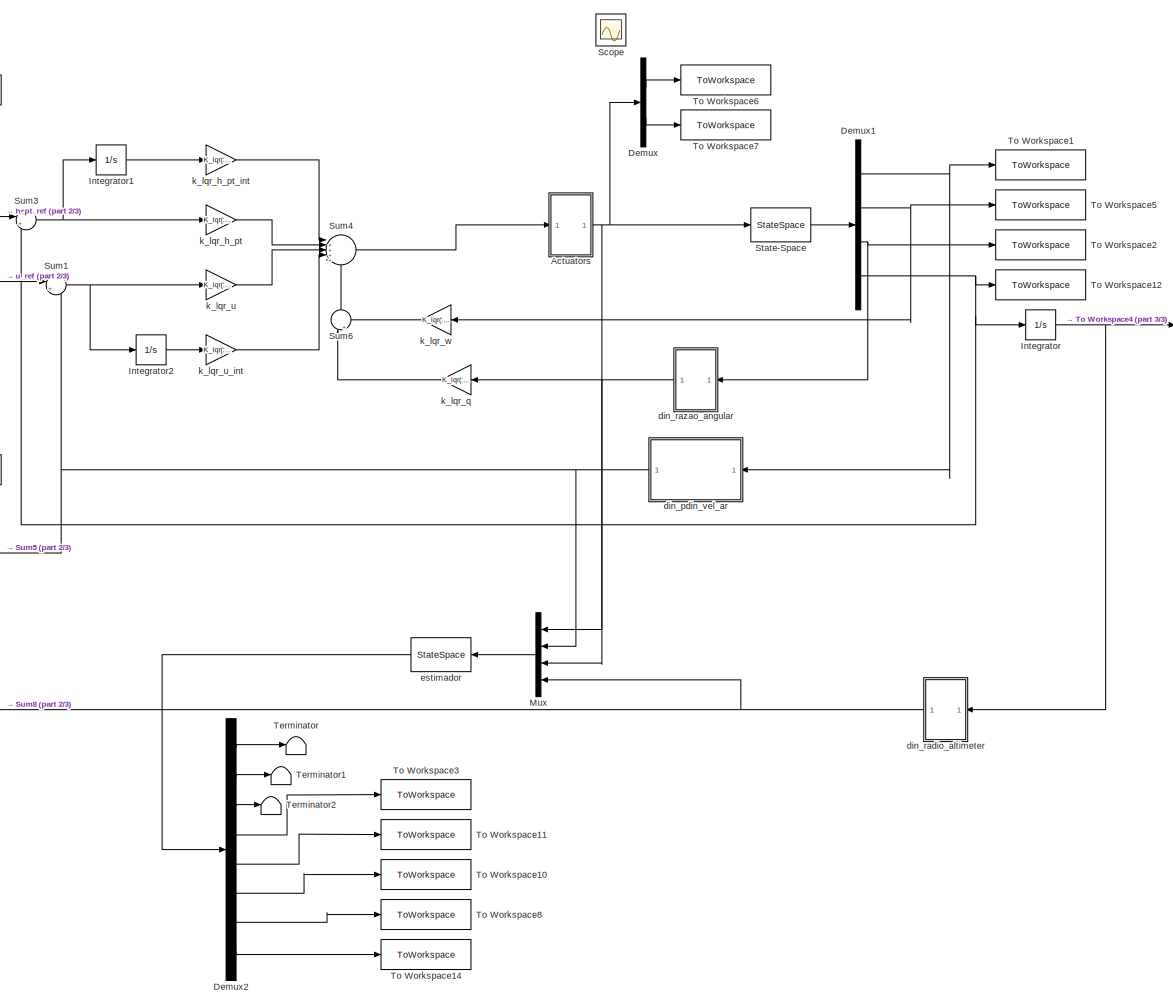
[diagram: root canvas - part 1/3, center side, full height]
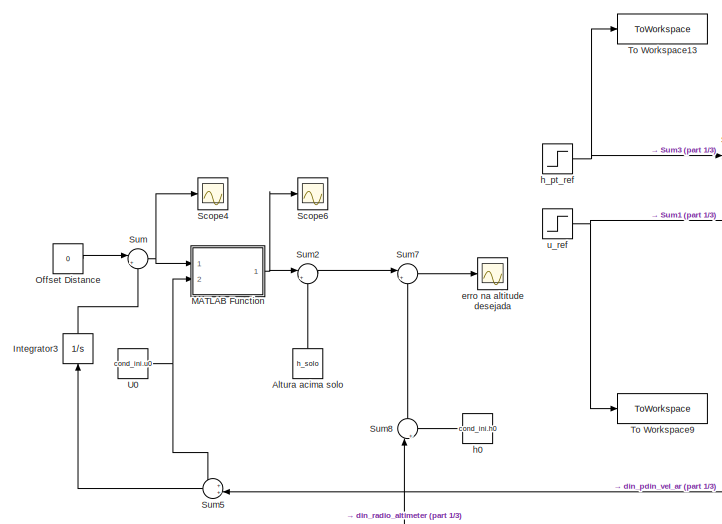
[diagram: root canvas - part 2/3, middle left region]
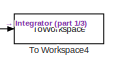
[diagram: root canvas - part 3/3, middle right region]
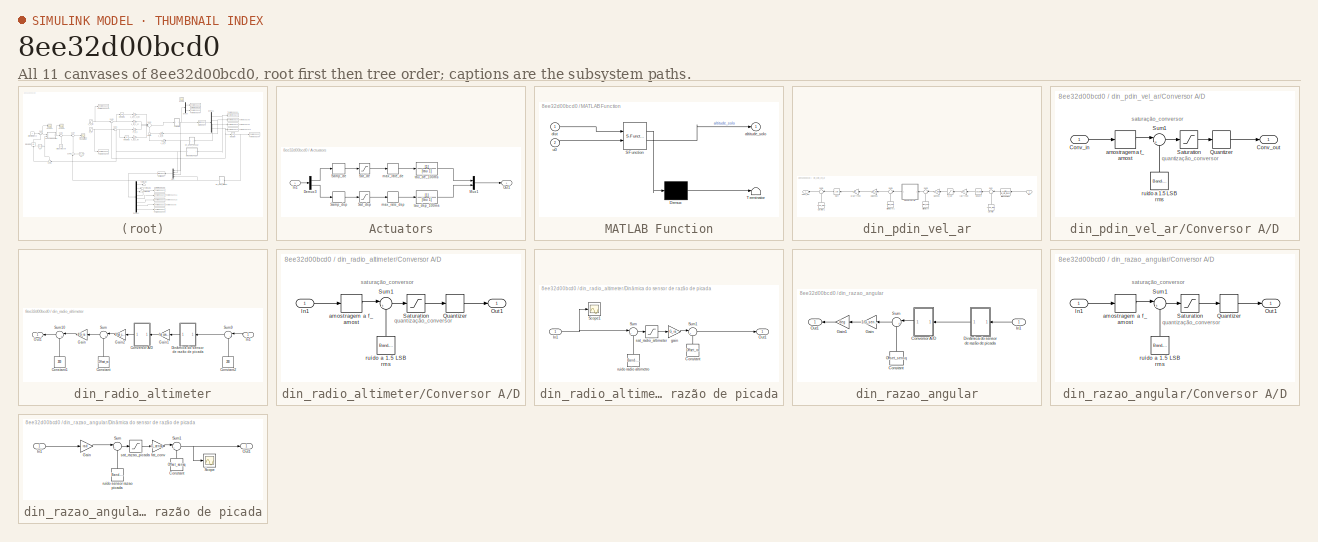
[diagram: thumbnail index - all 11 canvases of the model, root first then tree order]
MODEL slx_8ee32d00bcd0
KIND model
CONFIG AbsTol = auto
CONFIG EnableMultiTasking = off
CONFIG FixedStep = auto
CONFIG MaxStep = auto
CONFIG MinStep = auto
CONFIG RelTol = 1e-3
CONFIG SampleTimeConstraint = Unconstrained
CONFIG SolverName = VariableStepAuto
CONFIG StartTime = 0.0
CONFIG StopTime = 100
BLOCK [SubSystem] Actuators
  Ports = [1, 1]
  RequestExecContextInheritance = off
BLOCK [RateLimiter] Actuators/ max_rate_de
  FallingSlewLimit = -vel_max_at*deg
  RisingSlewLimit = vel_max_at*deg
  SampleTimeMode = inherited
BLOCK [RateLimiter] Actuators/ max_rate_dsp
  FallingSlewLimit = -vel_max_at*deg
  RisingSlewLimit = vel_max_at*deg
  SampleTimeMode = inherited
BLOCK [Demux] Actuators/Demux3
  Outputs = 2
  Ports = [1, 2]
BLOCK [Inport] Actuators/In1
BLOCK [Mux] Actuators/Mux1
  DisplayOption = bar
  Inputs = 2
  Ports = [2, 1]
BLOCK [Outport] Actuators/Out1
BLOCK [ZeroOrderHold] Actuators/Samp_de
  SampleTime = 1/f_amost
BLOCK [ZeroOrderHold] Actuators/Samp_dsp
  SampleTime = 1/f_amost
BLOCK [Saturate] Actuators/Sat_de
  LowerLimit = max_deflec.demin
  UpperLimit = max_deflec.demax
BLOCK [Saturate] Actuators/Sat_dsp
  LowerLimit = 0
  UpperLimit = max_deflec.spmax
BLOCK [TransferFcn] Actuators/tau_de_100ms
  Denominator = [tau 1]
BLOCK [TransferFcn] Actuators/tau_dsp_100ms
  Denominator = [tau 1]
BLOCK [Constant] Altura acima solo
  NameLocation = right
  Value = h_solo
BLOCK [Demux] Demux
  Outputs = 2
  Ports = [1, 2]
BLOCK [Demux] Demux1
  Ports = [1, 4]
BLOCK [Demux] Demux2
  Outputs = 8
  Ports = [1, 8]
BLOCK [Integrator] Integrator
  Ports = [1, 1]
BLOCK [Integrator] Integrator1
  Ports = [1, 1]
BLOCK [Integrator] Integrator2
  Ports = [1, 1]
BLOCK [Integrator] Integrator3
  NameLocation = right
  Ports = [1, 1]
BLOCK [SubSystem] MATLAB Function
  ErrorFcn = Stateflow.Translate.translate
  PermitHierarchicalResolution = ExplicitOnly
  Ports = [2, 1]
  RequestExecContextInheritance = off
  SFBlockType = MATLAB Function
  TreatAsAtomicUnit = on
BLOCK [Demux] MATLAB Function/ Demux 
  Outputs = 1
  Ports = [1, 1]
BLOCK [S-Function] MATLAB Function/ SFunction 
  EnableBusSupport = on
  FunctionName = sf_sfun
  PortCounts = [2 2]
  Ports = [2, 2]
  SFcnIsStateOwnerBlock = off
  SFunctionDeploymentMode = off
  Tag = Stateflow S-Function 2
BLOCK [Terminator] MATLAB Function/ Terminator 
BLOCK [Outport] MATLAB Function/altitude_solo
BLOCK [Inport] MATLAB Function/dist
BLOCK [Inport] MATLAB Function/u0
  Port = 2
BLOCK [Mux] Mux
  DisplayOption = bar
  NameLocation = top
  Ports = [4, 1]
BLOCK [Constant] Offset Distance
  Value = 0
BLOCK [Scope] Scope
  Floating = off
  IOType = viewer
  NumInputPorts = 1
  Ports = []
  ScopeSpecificationString = Simulink.scopes.TimeScopeBlockCfg('CurrentConfiguration', extmgr.ConfigurationSet(extmgr.Configuration('Core','General UI',true),extmgr.Configuration('Core','Source UI',true),extmgr.Configuration('Sources','WiredSimulink',true),extmgr.Configuration('Visuals','Time Domain',true,'SerializedDisplays',{struct('MinYLimReal','-0.52541','MaxYLimReal','2.48927','YLabelReal','','MinYLimMag','0.00000','MaxY...<+1359ch>
BLOCK [Scope] Scope4
  Floating = off
  NumInputPorts = 1
  Ports = [1]
  ScopeSpecificationString = Simulink.scopes.TimeScopeBlockCfg('CurrentConfiguration', extmgr.ConfigurationSet(extmgr.Configuration('Core','General UI',true),extmgr.Configuration('Core','Source UI',true),extmgr.Configuration('Sources','WiredSimulink',true,'DataLoggingVariableName','ScopeData2'),extmgr.Configuration('Visuals','Time Domain',true,'SerializedDisplays',{struct('MinYLimReal','-437.03217','MaxYLimReal','3933.28956',...<+1380ch>
BLOCK [Scope] Scope6
  Floating = off
  NumInputPorts = 1
  Ports = [1]
  ScopeSpecificationString = Simulink.scopes.TimeScopeBlockCfg('CurrentConfiguration', extmgr.ConfigurationSet(extmgr.Configuration('Core','General UI',true),extmgr.Configuration('Core','Source UI',true),extmgr.Configuration('Sources','WiredSimulink',true,'DataLoggingVariableName','ScopeData4'),extmgr.Configuration('Visuals','Time Domain',true,'SerializedDisplays',{struct('MinYLimReal','-21.25299','MaxYLimReal','191.27687','Y...<+1417ch>
BLOCK [StateSpace] State-Space
  A = a_h_pt
  B = b_h_pt
  C = c_h_pt
  D = d_h_pt
  InitialCondition = x0
  Ports = [1, 1]
BLOCK [Sum] Sum
  Inputs = |++
  Ports = [2, 1]
BLOCK [Sum] Sum1
  Inputs = |+-
  Ports = [2, 1]
BLOCK [Sum] Sum2
  Inputs = |++
  Ports = [2, 1]
BLOCK [Sum] Sum3
  Inputs = |+-
  Ports = [2, 1]
BLOCK [Sum] Sum4
  Inputs = |++++-
  Ports = [5, 1]
BLOCK [Sum] Sum5
  Inputs = ++|
  NameLocation = top
  Ports = [2, 1]
BLOCK [Sum] Sum6
  Inputs = |++
  NameLocation = right
  Ports = [2, 1]
BLOCK [Sum] Sum7
  Inputs = |+-
  Ports = [2, 1]
BLOCK [Sum] Sum8
  Inputs = |++
  NameLocation = right
  Ports = [2, 1]
BLOCK [Terminator] Terminator
BLOCK [Terminator] Terminator1
BLOCK [Terminator] Terminator2
BLOCK [ToWorkspace] To Workspace1
  FixptAsFi = on
  MaxDataPoints = inf
  Ports = [1]
  SampleTime = -1
  VariableName = u
BLOCK [ToWorkspace] To Workspace10
  FixptAsFi = on
  MaxDataPoints = inf
  Ports = [1]
  SampleTime = -1
  VariableName = q_e
BLOCK [ToWorkspace] To Workspace11
  FixptAsFi = on
  MaxDataPoints = inf
  Ports = [1]
  SampleTime = -1
  VariableName = w_e
BLOCK [ToWorkspace] To Workspace12
  FixptAsFi = on
  MaxDataPoints = inf
  Ports = [1]
  SampleTime = -1
  VariableName = h_pt
BLOCK [ToWorkspace] To Workspace13
  FixptAsFi = on
  MaxDataPoints = inf
  Ports = [1]
  SampleTime = -1
  VariableName = h_pt_ref
BLOCK [ToWorkspace] To Workspace14
  FixptAsFi = on
  MaxDataPoints = inf
  Ports = [1]
  SampleTime = -1
  VariableName = h_e
BLOCK [ToWorkspace] To Workspace2
  FixptAsFi = on
  MaxDataPoints = inf
  Ports = [1]
  SampleTime = -1
  VariableName = q
BLOCK [ToWorkspace] To Workspace3
  FixptAsFi = on
  MaxDataPoints = inf
  Ports = [1]
  SampleTime = -1
  VariableName = u_e
BLOCK [ToWorkspace] To Workspace4
  FixptAsFi = on
  MaxDataPoints = inf
  Ports = [1]
  SampleTime = -1
  VariableName = h
BLOCK [ToWorkspace] To Workspace5
  FixptAsFi = on
  MaxDataPoints = inf
  Ports = [1]
  SampleTime = -1
  VariableName = w
BLOCK [ToWorkspace] To Workspace6
  FixptAsFi = on
  MaxDataPoints = inf
  Ports = [1]
  SampleTime = -1
  SaveFormat = Structure With Time
  VariableName = de
BLOCK [ToWorkspace] To Workspace7
  FixptAsFi = on
  MaxDataPoints = inf
  Ports = [1]
  SampleTime = -1
  SaveFormat = Structure With Time
  VariableName = dsp
BLOCK [ToWorkspace] To Workspace8
  FixptAsFi = on
  MaxDataPoints = inf
  Ports = [1]
  SampleTime = -1
  VariableName = h_pt_e
BLOCK [ToWorkspace] To Workspace9
  FixptAsFi = on
  MaxDataPoints = inf
  Ports = [1]
  SampleTime = -1
  VariableName = u_ref
BLOCK [Constant] U0
  Value = cond_ini.u0
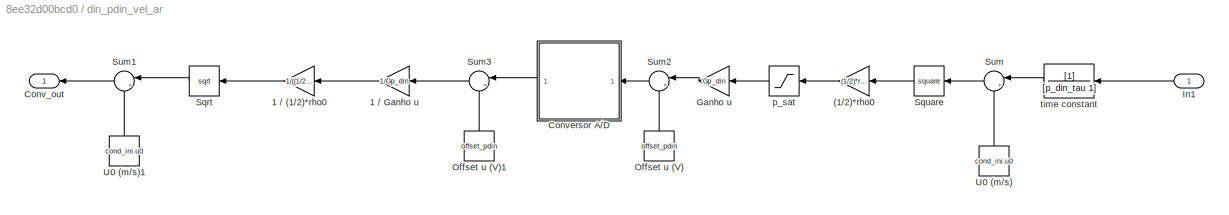
BLOCK [SubSystem] din_pdin_vel_ar
  NameLocation = top
  Ports = [1, 1]
  RequestExecContextInheritance = off
BLOCK [TransferFcn] din_pdin_vel_ar/ time constant
  Denominator = [p_din_tau 1]
  NameLocation = top
BLOCK [Gain] din_pdin_vel_ar/(1//2)*rho0
  Gain = (1/2)*rho0
  NameLocation = top
BLOCK [Gain] din_pdin_vel_ar/1 // (1//2)*rho0
  Gain = 1/((1/2)*rho0)
  NameLocation = top
BLOCK [Gain] din_pdin_vel_ar/1 // Ganho u
  Gain = 1/Gp_din
  NameLocation = top
BLOCK [Outport] din_pdin_vel_ar/Conv_out
  NameLocation = top
BLOCK [SubSystem] din_pdin_vel_ar/Conversor A//D
  NameLocation = top
  Ports = [1, 1]
  RequestExecContextInheritance = off
BLOCK [Inport] din_pdin_vel_ar/Conversor A//D/Conv_in
BLOCK [Outport] din_pdin_vel_ar/Conversor A//D/Conv_out
BLOCK [Quantizer] din_pdin_vel_ar/Conversor A//D/Quantizer
  QuantizationInterval = fat_quant
BLOCK [Saturate] din_pdin_vel_ar/Conversor A//D/Saturation
  LowerLimit = conv_min
  UpperLimit = conv_max
BLOCK [Sum] din_pdin_vel_ar/Conversor A//D/Sum1
  Inputs = |++
  Ports = [2, 1]
BLOCK [ZeroOrderHold] din_pdin_vel_ar/Conversor A//D/amostragem a f_amost
  SampleTime = 1/f_amost
BLOCK [Reference] din_pdin_vel_ar/Conversor A//D/ruído a 1.5 LSB rms  REF=simulink/Sources/Band-Limited
White Noise
  NameLocation = right
  Ports = [0, 1]
  SourceBlock = simulink/Sources/Band-Limited\nWhite Noise
  SourceProductBaseCode = SL
  SourceType = Band-Limited White Noise.
BLOCK [Gain] din_pdin_vel_ar/Ganho u
  Gain = Gp_din
  NameLocation = top
BLOCK [Inport] din_pdin_vel_ar/In1
  NameLocation = top
BLOCK [Constant] din_pdin_vel_ar/Offset u (V)
  NameLocation = right
  Value = offset_pdin
BLOCK [Constant] din_pdin_vel_ar/Offset u (V)1
  NameLocation = right
  Value = offset_pdin
BLOCK [Sqrt] din_pdin_vel_ar/Sqrt
  NameLocation = top
BLOCK [Math] din_pdin_vel_ar/Square
  NameLocation = top
  Operator = square
  Ports = [1, 1]
  SignedPower = on
BLOCK [Sum] din_pdin_vel_ar/Sum
  Inputs = |++
  NameLocation = top
  Ports = [2, 1]
BLOCK [Sum] din_pdin_vel_ar/Sum1
  Inputs = |+-
  NameLocation = top
  Ports = [2, 1]
BLOCK [Sum] din_pdin_vel_ar/Sum2
  Inputs = |++
  NameLocation = top
  Ports = [2, 1]
BLOCK [Sum] din_pdin_vel_ar/Sum3
  Inputs = |+-
  NameLocation = top
  Ports = [2, 1]
BLOCK [Constant] din_pdin_vel_ar/U0 (m//s)
  NameLocation = right
  Value = cond_ini.u0
BLOCK [Constant] din_pdin_vel_ar/U0 (m//s)1
  NameLocation = right
  Value = cond_ini.u0
BLOCK [Saturate] din_pdin_vel_ar/p_sat
  LowerLimit = pdin_min
  NameLocation = top
  UpperLimit = pdin_max
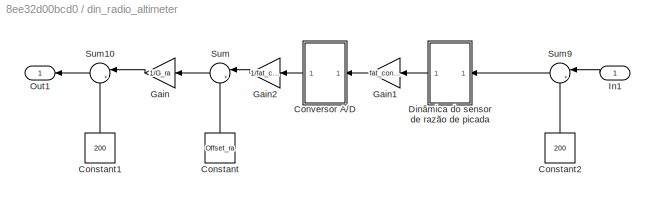
BLOCK [SubSystem] din_radio_altimeter
  Ports = [1, 1]
  RequestExecContextInheritance = off
BLOCK [Constant] din_radio_altimeter/Constant
  NameLocation = right
  Value = Offset_ra
BLOCK [Constant] din_radio_altimeter/Constant1
  NameLocation = right
  Value = 200
BLOCK [Constant] din_radio_altimeter/Constant2
  NameLocation = right
  Value = 200
BLOCK [SubSystem] din_radio_altimeter/Conversor A//D
  NameLocation = top
  Ports = [1, 1]
  RequestExecContextInheritance = off
BLOCK [Inport] din_radio_altimeter/Conversor A//D/In1
BLOCK [Outport] din_radio_altimeter/Conversor A//D/Out1
BLOCK [Quantizer] din_radio_altimeter/Conversor A//D/Quantizer
  QuantizationInterval = fat_quant
BLOCK [Saturate] din_radio_altimeter/Conversor A//D/Saturation
  LowerLimit = conv_min
  UpperLimit = conv_max
BLOCK [Sum] din_radio_altimeter/Conversor A//D/Sum1
  Inputs = |++
  Ports = [2, 1]
BLOCK [ZeroOrderHold] din_radio_altimeter/Conversor A//D/amostragem a f_amost
  SampleTime = 1/f_amost
BLOCK [Reference] din_radio_altimeter/Conversor A//D/ruído a 1.5 LSB rms  REF=simulink/Sources/Band-Limited
White Noise
  NameLocation = right
  Ports = [0, 1]
  SourceBlock = simulink/Sources/Band-Limited\nWhite Noise
  SourceProductBaseCode = SL
  SourceType = Band-Limited White Noise.
BLOCK [SubSystem] din_radio_altimeter/Dinâmica do sensor de razão de picada
  Ports = [1, 1]
  RequestExecContextInheritance = off
BLOCK [Constant] din_radio_altimeter/Dinâmica do sensor de razão de picada/Constant
  NameLocation = right
  Value = Offset_ra
BLOCK [Inport] din_radio_altimeter/Dinâmica do sensor de razão de picada/In1
BLOCK [Outport] din_radio_altimeter/Dinâmica do sensor de razão de picada/Out1
BLOCK [Scope] din_radio_altimeter/Dinâmica do sensor de razão de picada/Scope1
  Floating = off
  NumInputPorts = 1
  Ports = [1]
  ScopeSpecificationString = Simulink.scopes.TimeScopeBlockCfg('CurrentConfiguration', extmgr.ConfigurationSet(extmgr.Configuration('Core','General UI',true),extmgr.Configuration('Core','Source UI',true),extmgr.Configuration('Sources','WiredSimulink',true,'DataLoggingVariableName','ScopeData6'),extmgr.Configuration('Visuals','Time Domain',true,'SerializedDisplays',{struct('MinYLimReal','112.81721','MaxYLimReal','209.79696','Y...<+1376ch>
BLOCK [Sum] din_radio_altimeter/Dinâmica do sensor de razão de picada/Sum
  Inputs = |++
  Ports = [2, 1]
BLOCK [Sum] din_radio_altimeter/Dinâmica do sensor de razão de picada/Sum1
  Inputs = |++
  Ports = [2, 1]
BLOCK [Gain] din_radio_altimeter/Dinâmica do sensor de razão de picada/gain
  Gain = G_ra
BLOCK [Reference] din_radio_altimeter/Dinâmica do sensor de razão de picada/ruido radio altimetro  REF=simulink/Sources/Band-Limited
White Noise
  NameLocation = right
  Ports = [0, 1]
  SourceBlock = simulink/Sources/Band-Limited\nWhite Noise
  SourceProductBaseCode = SL
  SourceType = Band-Limited White Noise.
BLOCK [Saturate] din_radio_altimeter/Dinâmica do sensor de razão de picada/sat_radio_altimeter
  LowerLimit = h_ra_min
  NameLocation = top
  UpperLimit = h_ra_max
BLOCK [Gain] din_radio_altimeter/Gain
  Gain = 1/G_ra
  NameLocation = top
BLOCK [Gain] din_radio_altimeter/Gain1
  Gain = fat_conv_ra
  NameLocation = top
BLOCK [Gain] din_radio_altimeter/Gain2
  Gain = 1/fat_conv_ra
  NameLocation = top
BLOCK [Inport] din_radio_altimeter/In1
  NameLocation = top
BLOCK [Outport] din_radio_altimeter/Out1
BLOCK [Sum] din_radio_altimeter/Sum
  Inputs = |+-
  NameLocation = top
  Ports = [2, 1]
BLOCK [Sum] din_radio_altimeter/Sum10
  Inputs = |+-
  NameLocation = top
  Ports = [2, 1]
BLOCK [Sum] din_radio_altimeter/Sum9
  Inputs = |++
  NameLocation = top
  Ports = [2, 1]
BLOCK [SubSystem] din_razao_angular
  Ports = [1, 1]
  RequestExecContextInheritance = off
BLOCK [Constant] din_razao_angular/Constant
  NameLocation = right
  Value = Offset_sensq
BLOCK [SubSystem] din_razao_angular/Conversor A//D
  NameLocation = top
  Ports = [1, 1]
  RequestExecContextInheritance = off
BLOCK [Inport] din_razao_angular/Conversor A//D/In1
BLOCK [Outport] din_razao_angular/Conversor A//D/Out1
BLOCK [Quantizer] din_razao_angular/Conversor A//D/Quantizer
  QuantizationInterval = fat_quant
BLOCK [Saturate] din_razao_angular/Conversor A//D/Saturation
  LowerLimit = conv_min
  UpperLimit = conv_max
BLOCK [Sum] din_razao_angular/Conversor A//D/Sum1
  Inputs = |++
  Ports = [2, 1]
BLOCK [ZeroOrderHold] din_razao_angular/Conversor A//D/amostragem a f_amost
  SampleTime = 1/f_amost
BLOCK [Reference] din_razao_angular/Conversor A//D/ruído a 1.5 LSB rms  REF=simulink/Sources/Band-Limited
White Noise
  NameLocation = right
  Ports = [0, 1]
  SourceBlock = simulink/Sources/Band-Limited\nWhite Noise
  SourceProductBaseCode = SL
  SourceType = Band-Limited White Noise.
BLOCK [SubSystem] din_razao_angular/Dinâmica do sensor de razão de picada
  Ports = [1, 1]
  RequestExecContextInheritance = off
BLOCK [Constant] din_razao_angular/Dinâmica do sensor de razão de picada/Constant
  NameLocation = right
  Value = Offset_sensq
BLOCK [Gain] din_razao_angular/Dinâmica do sensor de razão de picada/Gain
  Gain = rad
  NameLocation = top
BLOCK [Inport] din_razao_angular/Dinâmica do sensor de razão de picada/In1
BLOCK [Outport] din_razao_angular/Dinâmica do sensor de razão de picada/Out1
BLOCK [Scope] din_razao_angular/Dinâmica do sensor de razão de picada/Scope
  Floating = off
  NumInputPorts = 1
  Ports = [1]
  ScopeSpecificationString = Simulink.scopes.TimeScopeBlockCfg('CurrentConfiguration', extmgr.ConfigurationSet(extmgr.Configuration('Core','General UI',true),extmgr.Configuration('Core','Source UI',true),extmgr.Configuration('Sources','WiredSimulink',true,'DataLoggingVariableName','ScopeData3'),extmgr.Configuration('Visuals','Time Domain',true),extmgr.Configuration('Tools','Plot Navigation',true),extmgr.Configuration('Tools',...<+40ch>
BLOCK [Sum] din_razao_angular/Dinâmica do sensor de razão de picada/Sum
  Inputs = |++
  Ports = [2, 1]
BLOCK [Sum] din_razao_angular/Dinâmica do sensor de razão de picada/Sum1
  Inputs = |++
  Ports = [2, 1]
BLOCK [Gain] din_razao_angular/Dinâmica do sensor de razão de picada/fat_conv
  Gain = G_sensq
BLOCK [Reference] din_razao_angular/Dinâmica do sensor de razão de picada/ruído sensor razao picada  REF=simulink/Sources/Band-Limited
White Noise
  NameLocation = right
  Ports = [0, 1]
  SourceBlock = simulink/Sources/Band-Limited\nWhite Noise
  SourceProductBaseCode = SL
  SourceType = Band-Limited White Noise.
BLOCK [Saturate] din_razao_angular/Dinâmica do sensor de razão de picada/sat_razao_picada
  LowerLimit = q_min_sensq
  NameLocation = top
  UpperLimit = q_max_sensq
BLOCK [Gain] din_razao_angular/Gain
  Gain = 1/G_sensq
  NameLocation = top
BLOCK [Gain] din_razao_angular/Gain1
  Gain = deg
  NameLocation = top
BLOCK [Inport] din_razao_angular/In1
  NameLocation = top
BLOCK [Outport] din_razao_angular/Out1
BLOCK [Sum] din_razao_angular/Sum
  Inputs = |+-
  NameLocation = top
  Ports = [2, 1]
BLOCK [Scope] erro na altitude desejada
  Floating = off
  NumInputPorts = 1
  Ports = [1]
  ScopeSpecificationString = Simulink.scopes.TimeScopeBlockCfg('CurrentConfiguration', extmgr.ConfigurationSet(extmgr.Configuration('Core','General UI',true),extmgr.Configuration('Core','Source UI',true),extmgr.Configuration('Sources','WiredSimulink',true,'DataLoggingVariableName','ScopeData1'),extmgr.Configuration('Visuals','Time Domain',true,'SerializedDisplays',{struct('MinYLimReal','-22.77155','MaxYLimReal','277.53603','Y...<+1405ch>
BLOCK [StateSpace] estimador
  A = ae
  B = be
  C = ce
  D = de
  InitialCondition = x0_e
  NameLocation = top
  Ports = [1, 1]
BLOCK [Constant] h0
  NameLocation = top
  Value = cond_ini.h0
BLOCK [Step] h_pt_ref
  After = h_pt_ref
  SampleTime = 0
  Time = 10
  VectorParams1D = off
BLOCK [Gain] k_lqr_h_pt
  Gain = K_lqr(:,4)
  Multiplication = Matrix(K*u)
BLOCK [Gain] k_lqr_h_pt_int
  Gain = K_lqr(:,6)
  Multiplication = Matrix(K*u)
BLOCK [Gain] k_lqr_q
  Gain = K_lqr(:,3)
  Multiplication = Matrix(K*u)
  NameLocation = top
BLOCK [Gain] k_lqr_u
  Gain = K_lqr(:,1)
  Multiplication = Matrix(K*u)
BLOCK [Gain] k_lqr_u_int
  Gain = K_lqr(:,5)
  Multiplication = Matrix(K*u)
BLOCK [Gain] k_lqr_w
  Gain = K_lqr(:,2)
  Multiplication = Matrix(K*u)
  NameLocation = top
BLOCK [Step] u_ref
  After = u_ref
  SampleTime = 0
  Time = 50
  VectorParams1D = off
ANNOTATION din_pdin_vel_ar/Conversor A//D: quantização_conversor
ANNOTATION din_pdin_vel_ar/Conversor A//D: saturação_conversor
ANNOTATION din_radio_altimeter/Conversor A//D: quantização_conversor
ANNOTATION din_radio_altimeter/Conversor A//D: saturação_conversor
ANNOTATION din_razao_angular/Conversor A//D: quantização_conversor
ANNOTATION din_razao_angular/Conversor A//D: saturação_conversor
LINE Actuators/ max_rate_de:1 -> Actuators/tau_de_100ms:1
LINE Actuators/ max_rate_dsp:1 -> Actuators/tau_dsp_100ms:1
LINE Actuators/Demux3:1 -> Actuators/Samp_de:1
LINE Actuators/Demux3:2 -> Actuators/Samp_dsp:1
LINE Actuators/In1:1 -> Actuators/Demux3:1
LINE Actuators/Mux1:1 -> Actuators/Out1:1
LINE Actuators/Samp_de:1 -> Actuators/Sat_de:1
LINE Actuators/Samp_dsp:1 -> Actuators/Sat_dsp:1
LINE Actuators/Sat_de:1 -> Actuators/ max_rate_de:1
LINE Actuators/Sat_dsp:1 -> Actuators/ max_rate_dsp:1
LINE Actuators/tau_de_100ms:1 -> Actuators/Mux1:1
LINE Actuators/tau_dsp_100ms:1 -> Actuators/Mux1:2
NET Actuators:1 -> Demux:1, Mux:1, State-Space:1
LINE Altura acima solo:1 -> Sum2:2
NET Demux1:1 -> To Workspace1:1, din_pdin_vel_ar:1
NET Demux1:2 -> To Workspace5:1, k_lqr_w:1
NET Demux1:3 -> To Workspace2:1, din_razao_angular:1
NET Demux1:4 -> Integrator:1, Sum3:2, To Workspace12:1
LINE Demux2:1 -> Terminator:1
LINE Demux2:2 -> Terminator1:1
LINE Demux2:3 -> Terminator2:1
LINE Demux2:4 -> To Workspace3:1
LINE Demux2:5 -> To Workspace11:1
LINE Demux2:6 -> To Workspace10:1
LINE Demux2:7 -> To Workspace8:1
LINE Demux2:8 -> To Workspace14:1
LINE Demux:1 -> To Workspace6:1
LINE Demux:2 -> To Workspace7:1
LINE Integrator1:1 -> k_lqr_h_pt_int:1
LINE Integrator2:1 -> k_lqr_u_int:1
LINE Integrator3:1 -> Sum:2
NET Integrator:1 -> To Workspace4:1, din_radio_altimeter:1
NET MATLAB Function:1 -> Scope6:1, Sum2:1
LINE Mux:1 -> estimador:1
LINE Offset Distance:1 -> Sum:1
LINE State-Space:1 -> Demux1:1
NET Sum1:1 -> Integrator2:1, k_lqr_u:1
LINE Sum2:1 -> Sum7:1
NET Sum3:1 -> Integrator1:1, k_lqr_h_pt:1
LINE Sum4:1 -> Actuators:1
LINE Sum5:1 -> Integrator3:1
LINE Sum6:1 -> Sum4:5
LINE Sum7:1 -> erro na altitude desejada:1
LINE Sum8:1 -> Sum7:2
NET Sum:1 -> MATLAB Function:1, Scope4:1
NET U0:1 -> MATLAB Function:2, Sum5:1
LINE din_pdin_vel_ar/ time constant:1 -> din_pdin_vel_ar/Sum:1
LINE din_pdin_vel_ar/(1//2)*rho0:1 -> din_pdin_vel_ar/p_sat:1
LINE din_pdin_vel_ar/1 // (1//2)*rho0:1 -> din_pdin_vel_ar/Sqrt:1
LINE din_pdin_vel_ar/1 // Ganho u:1 -> din_pdin_vel_ar/1 // (1//2)*rho0:1
LINE din_pdin_vel_ar/Conversor A//D/Conv_in:1 -> din_pdin_vel_ar/Conversor A//D/amostragem a f_amost:1
LINE din_pdin_vel_ar/Conversor A//D/Quantizer:1 -> din_pdin_vel_ar/Conversor A//D/Conv_out:1
LINE din_pdin_vel_ar/Conversor A//D/Saturation:1 -> din_pdin_vel_ar/Conversor A//D/Quantizer:1
LINE din_pdin_vel_ar/Conversor A//D/Sum1:1 -> din_pdin_vel_ar/Conversor A//D/Saturation:1
LINE din_pdin_vel_ar/Conversor A//D/amostragem a f_amost:1 -> din_pdin_vel_ar/Conversor A//D/Sum1:1
LINE din_pdin_vel_ar/Conversor A//D/ruído a 1.5 LSB rms:1 -> din_pdin_vel_ar/Conversor A//D/Sum1:2
LINE din_pdin_vel_ar/Conversor A//D:1 -> din_pdin_vel_ar/Sum3:1
LINE din_pdin_vel_ar/Ganho u:1 -> din_pdin_vel_ar/Sum2:1
LINE din_pdin_vel_ar/In1:1 -> din_pdin_vel_ar/ time constant:1
LINE din_pdin_vel_ar/Offset u (V)1:1 -> din_pdin_vel_ar/Sum3:2
LINE din_pdin_vel_ar/Offset u (V):1 -> din_pdin_vel_ar/Sum2:2
LINE din_pdin_vel_ar/Sqrt:1 -> din_pdin_vel_ar/Sum1:1
LINE din_pdin_vel_ar/Square:1 -> din_pdin_vel_ar/(1//2)*rho0:1
LINE din_pdin_vel_ar/Sum1:1 -> din_pdin_vel_ar/Conv_out:1
LINE din_pdin_vel_ar/Sum2:1 -> din_pdin_vel_ar/Conversor A//D:1
LINE din_pdin_vel_ar/Sum3:1 -> din_pdin_vel_ar/1 // Ganho u:1
LINE din_pdin_vel_ar/Sum:1 -> din_pdin_vel_ar/Square:1
LINE din_pdin_vel_ar/U0 (m//s)1:1 -> din_pdin_vel_ar/Sum1:2
LINE din_pdin_vel_ar/U0 (m//s):1 -> din_pdin_vel_ar/Sum:2
LINE din_pdin_vel_ar/p_sat:1 -> din_pdin_vel_ar/Ganho u:1
NET din_pdin_vel_ar:1 -> Mux:2, Sum1:2, Sum5:2
LINE din_radio_altimeter/Constant1:1 -> din_radio_altimeter/Sum10:2
LINE din_radio_altimeter/Constant2:1 -> din_radio_altimeter/Sum9:2
LINE din_radio_altimeter/Constant:1 -> din_radio_altimeter/Sum:2
LINE din_radio_altimeter/Conversor A//D/In1:1 -> din_radio_altimeter/Conversor A//D/amostragem a f_amost:1
LINE din_radio_altimeter/Conversor A//D/Quantizer:1 -> din_radio_altimeter/Conversor A//D/Out1:1
LINE din_radio_altimeter/Conversor A//D/Saturation:1 -> din_radio_altimeter/Conversor A//D/Quantizer:1
LINE din_radio_altimeter/Conversor A//D/Sum1:1 -> din_radio_altimeter/Conversor A//D/Saturation:1
LINE din_radio_altimeter/Conversor A//D/amostragem a f_amost:1 -> din_radio_altimeter/Conversor A//D/Sum1:1
LINE din_radio_altimeter/Conversor A//D/ruído a 1.5 LSB rms:1 -> din_radio_altimeter/Conversor A//D/Sum1:2
LINE din_radio_altimeter/Conversor A//D:1 -> din_radio_altimeter/Gain2:1
LINE din_radio_altimeter/Dinâmica do sensor de razão de picada/Constant:1 -> din_radio_altimeter/Dinâmica do sensor de razão de picada/Sum1:2
NET din_radio_altimeter/Dinâmica do sensor de razão de picada/In1:1 -> din_radio_altimeter/Dinâmica do sensor de razão de picada/Scope1:1, din_radio_altimeter/Dinâmica do sensor de razão de picada/Sum:1
LINE din_radio_altimeter/Dinâmica do sensor de razão de picada/Sum1:1 -> din_radio_altimeter/Dinâmica do sensor de razão de picada/Out1:1
LINE din_radio_altimeter/Dinâmica do sensor de razão de picada/Sum:1 -> din_radio_altimeter/Dinâmica do sensor de razão de picada/sat_radio_altimeter:1
LINE din_radio_altimeter/Dinâmica do sensor de razão de picada/gain:1 -> din_radio_altimeter/Dinâmica do sensor de razão de picada/Sum1:1
LINE din_radio_altimeter/Dinâmica do sensor de razão de picada/ruido radio altimetro:1 -> din_radio_altimeter/Dinâmica do sensor de razão de picada/Sum:2
LINE din_radio_altimeter/Dinâmica do sensor de razão de picada/sat_radio_altimeter:1 -> din_radio_altimeter/Dinâmica do sensor de razão de picada/gain:1
LINE din_radio_altimeter/Dinâmica do sensor de razão de picada:1 -> din_radio_altimeter/Gain1:1
LINE din_radio_altimeter/Gain1:1 -> din_radio_altimeter/Conversor A//D:1
LINE din_radio_altimeter/Gain2:1 -> din_radio_altimeter/Sum:1
LINE din_radio_altimeter/Gain:1 -> din_radio_altimeter/Sum10:1
LINE din_radio_altimeter/In1:1 -> din_radio_altimeter/Sum9:1
LINE din_radio_altimeter/Sum10:1 -> din_radio_altimeter/Out1:1
LINE din_radio_altimeter/Sum9:1 -> din_radio_altimeter/Dinâmica do sensor de razão de picada:1
LINE din_radio_altimeter/Sum:1 -> din_radio_altimeter/Gain:1
NET din_radio_altimeter:1 -> Mux:4, Sum8:1
LINE din_razao_angular/Constant:1 -> din_razao_angular/Sum:2
LINE din_razao_angular/Conversor A//D/In1:1 -> din_razao_angular/Conversor A//D/amostragem a f_amost:1
LINE din_razao_angular/Conversor A//D/Quantizer:1 -> din_razao_angular/Conversor A//D/Out1:1
LINE din_razao_angular/Conversor A//D/Saturation:1 -> din_razao_angular/Conversor A//D/Quantizer:1
LINE din_razao_angular/Conversor A//D/Sum1:1 -> din_razao_angular/Conversor A//D/Saturation:1
LINE din_razao_angular/Conversor A//D/amostragem a f_amost:1 -> din_razao_angular/Conversor A//D/Sum1:1
LINE din_razao_angular/Conversor A//D/ruído a 1.5 LSB rms:1 -> din_razao_angular/Conversor A//D/Sum1:2
LINE din_razao_angular/Conversor A//D:1 -> din_razao_angular/Sum:1
LINE din_razao_angular/Dinâmica do sensor de razão de picada/Constant:1 -> din_razao_angular/Dinâmica do sensor de razão de picada/Sum1:2
LINE din_razao_angular/Dinâmica do sensor de razão de picada/Gain:1 -> din_razao_angular/Dinâmica do sensor de razão de picada/Sum:1
LINE din_razao_angular/Dinâmica do sensor de razão de picada/In1:1 -> din_razao_angular/Dinâmica do sensor de razão de picada/Gain:1
NET din_razao_angular/Dinâmica do sensor de razão de picada/Sum1:1 -> din_razao_angular/Dinâmica do sensor de razão de picada/Out1:1, din_razao_angular/Dinâmica do sensor de razão de picada/Scope:1
LINE din_razao_angular/Dinâmica do sensor de razão de picada/Sum:1 -> din_razao_angular/Dinâmica do sensor de razão de picada/sat_razao_picada:1
LINE din_razao_angular/Dinâmica do sensor de razão de picada/fat_conv:1 -> din_razao_angular/Dinâmica do sensor de razão de picada/Sum1:1
LINE din_razao_angular/Dinâmica do sensor de razão de picada/ruído sensor razao picada:1 -> din_razao_angular/Dinâmica do sensor de razão de picada/Sum:2
LINE din_razao_angular/Dinâmica do sensor de razão de picada/sat_razao_picada:1 -> din_razao_angular/Dinâmica do sensor de razão de picada/fat_conv:1
LINE din_razao_angular/Dinâmica do sensor de razão de picada:1 -> din_razao_angular/Conversor A//D:1
LINE din_razao_angular/Gain1:1 -> din_razao_angular/Out1:1
LINE din_razao_angular/Gain:1 -> din_razao_angular/Gain1:1
LINE din_razao_angular/In1:1 -> din_razao_angular/Dinâmica do sensor de razão de picada:1
LINE din_razao_angular/Sum:1 -> din_razao_angular/Gain:1
NET din_razao_angular:1 -> Mux:3, k_lqr_q:1
LINE estimador:1 -> Demux2:1
LINE h0:1 -> Sum8:2
NET h_pt_ref:1 -> Sum3:1, To Workspace13:1
LINE k_lqr_h_pt:1 -> Sum4:2
LINE k_lqr_h_pt_int:1 -> Sum4:1
LINE k_lqr_q:1 -> Sum6:1
LINE k_lqr_u:1 -> Sum4:3
LINE k_lqr_u_int:1 -> Sum4:4
LINE k_lqr_w:1 -> Sum6:2
NET u_ref:1 -> Sum1:1, To Workspace9:1
note: NET lines group one-source signal fan-out (src -> all destinations, sorted); 1:1 wires keep LINE
CHART MATLAB Function states=1 transitions=1
  STATE_LABEL 'eML_blk_kernel()'
  STATE_LABEL 'SCRIPT:\nfunction altitude_solo = fcn(dist,u0)\n\naltitude_solo = 5*u0;\n\nif dist >= 0 && dist < 20*u0\n    altitude_solo = -dist/4 + 5*u0;\nelseif dist >= 20*u0 && dist < 40*u0\n    altitude_solo = 0;\nelseif dist >= 40*u0 && dist < 60*u0\n    %altitude_solo = p(1)*dist^3 + p(2)*dist^2 + p(3)*dist + p(4);\n    altitude_solo = 3*u0;\nelseif dist >= 60*u0 && dist <= 80*u0\n    altitude_solo = 5*u0;\nend\n'
CHART  states=0 transitions=0
